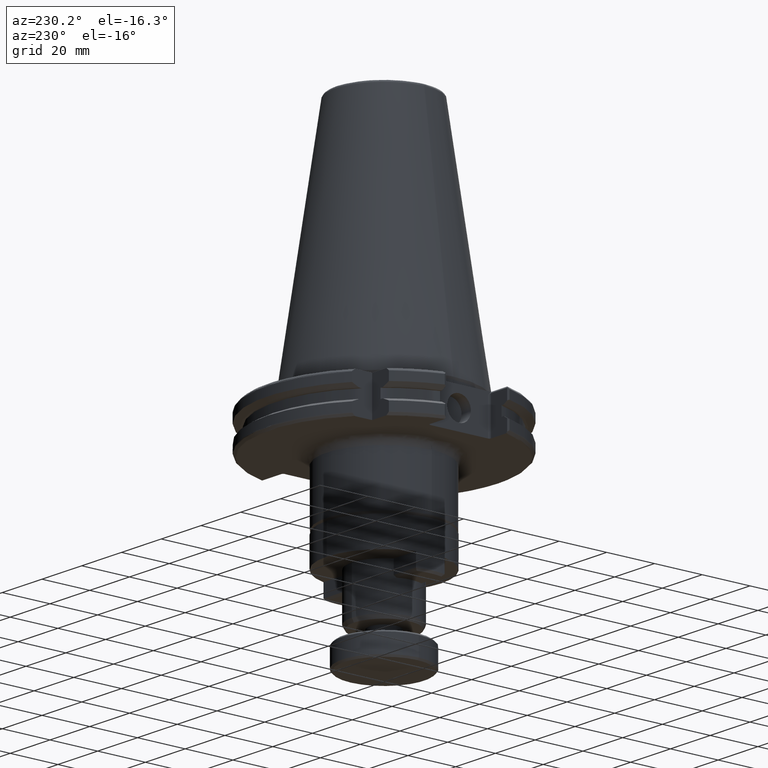
[diagram: clean part render]
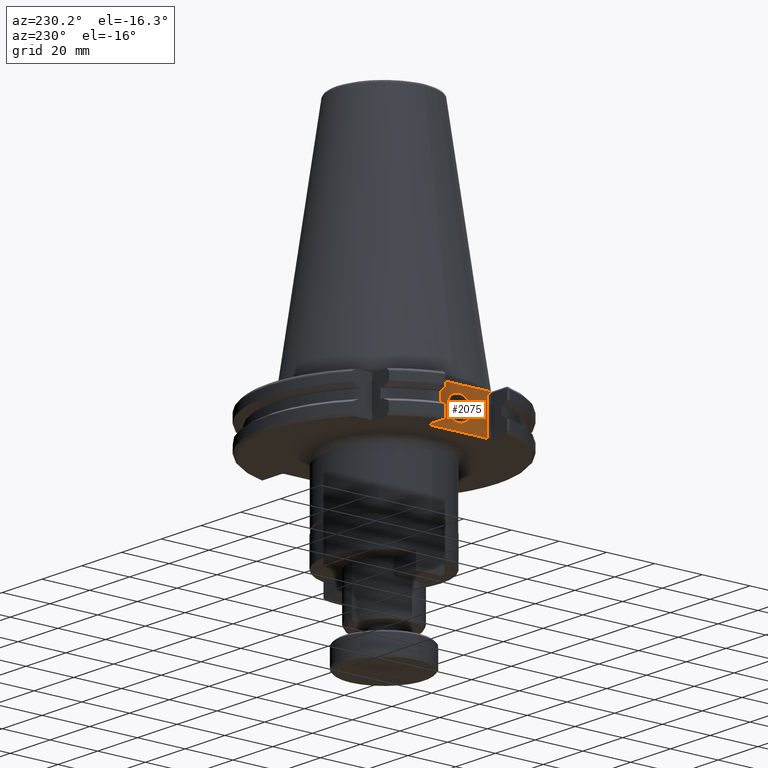
[diagram: same view with one face highlighted and labeled with its STEP entity id]
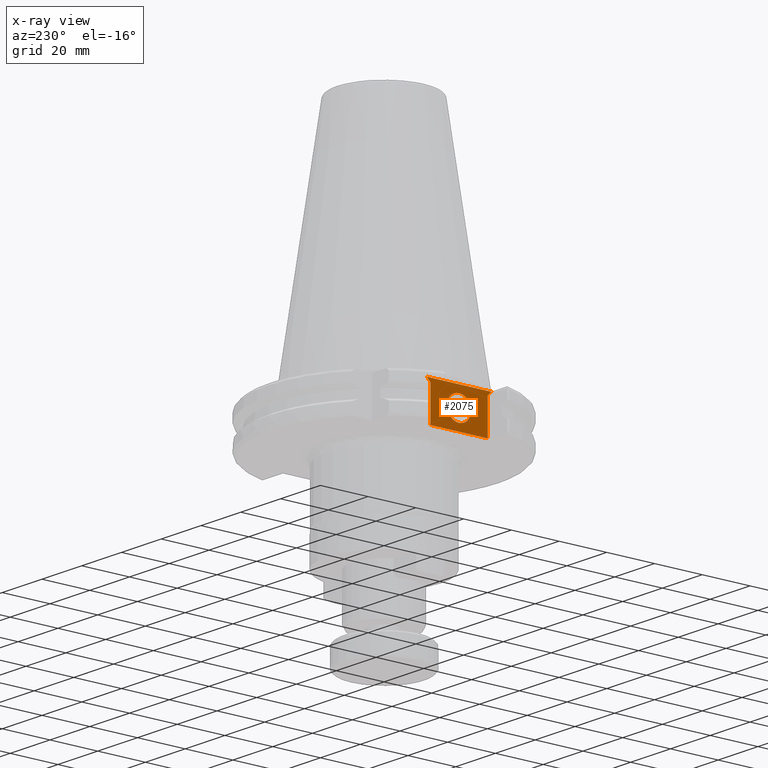
[diagram: x-ray of the same camera — body ghosted, the highlighted face saturated]
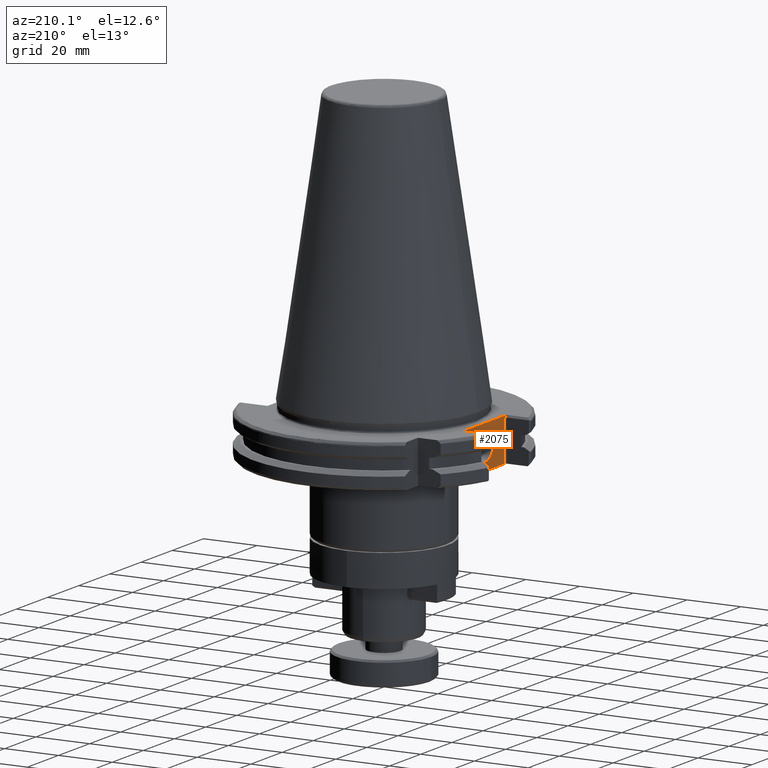
[diagram: same view with one face highlighted and labeled with its STEP entity id]
A machine part, auxiliary view. The second image highlights one B-rep face of the part: STEP entity #2075.
The next image is the same camera in x-ray: the body ghosted, the highlighted face saturated — about 0% of this face is hidden behind the body in this view.
A second angle (auxiliary view) of the same face is appended — the face is thin or edge-on in the first view.
In plain terms, the highlighted planar face has unit normal (-1, 0, 0).
Its self-contained STEP definition (entity closure, byte-faithful):
#4 = CARTESIAN_POINT ( 'NONE',  ( -37.70000000000000300, -13.71260000000000000, -19.10000000000000100 ) ) ;
#9 = ORIENTED_EDGE ( 'NONE', *, *, #2354, .T. ) ;
#83 = VECTOR ( 'NONE', #1990, 1000.000000000000000 ) ;
#100 = ORIENTED_EDGE ( 'NONE', *, *, #1034, .T. ) ;
#120 = PLANE ( 'NONE',  #5437 ) ;
#136 = DIRECTION ( 'NONE',  ( -1.000000000000000000, 0.0000000000000000000, 0.0000000000000000000 ) ) ;
#137 = LINE ( 'NONE', #1383, #83 ) ;
#157 = DIRECTION ( 'NONE',  ( 0.0000000000000000000, 0.0000000000000000000, 1.000000000000000000 ) ) ;
#159 = ORIENTED_EDGE ( 'NONE', *, *, #3471, .T. ) ;
#296 = FACE_BOUND ( 'NONE', #4610, .T. ) ;
#319 = VERTEX_POINT ( 'NONE', #1277 ) ;
#355 = FACE_OUTER_BOUND ( 'NONE', #4769, .T. ) ;
#448 = EDGE_CURVE ( 'NONE', #752, #319, #2301, .T. ) ;
#459 = DIRECTION ( 'NONE',  ( 0.0000000000000000000, -0.7071067809318952700, 0.7071067814411997600 ) ) ;
#549 = CIRCLE ( 'NONE', #3278, 5.000000000000000900 ) ;
#752 = VERTEX_POINT ( 'NONE', #3655 ) ;
#803 = CARTESIAN_POINT ( 'NONE',  ( -37.70000000000000300, 13.54999999327920100, -3.200000000000001500 ) ) ;
#851 = VERTEX_POINT ( 'NONE', #4781 ) ;
#995 = EDGE_CURVE ( 'NONE', #3117, #2011, #1650, .T. ) ;
#1034 = EDGE_CURVE ( 'NONE', #5025, #1221, #1617, .T. ) ;
#1095 = DIRECTION ( 'NONE',  ( 0.0000000000000000000, -0.7071067809318952700, -0.7071067814411997600 ) ) ;
#1221 = VERTEX_POINT ( 'NONE', #2249 ) ;
#1277 = CARTESIAN_POINT ( 'NONE',  ( -37.70000000000000300, 6.123233995736767300E-016, -16.15000000000000200 ) ) ;
#1332 = VECTOR ( 'NONE', #3409, 1000.000000000000000 ) ;
#1383 = CARTESIAN_POINT ( 'NONE',  ( -37.70000000000000300, -12.04999998865959800, -11.15000000000000200 ) ) ;
#1611 = VECTOR ( 'NONE', #459, 1000.000000000000100 ) ;
#1617 = LINE ( 'NONE', #2239, #1611 ) ;
#1627 = VECTOR ( 'NONE', #1095, 1000.000000000000100 ) ;
#1650 = LINE ( 'NONE', #803, #1627 ) ;
#1990 = DIRECTION ( 'NONE',  ( 0.0000000000000000000, 0.0000000000000000000, 1.000000000000000000 ) ) ;
#2011 = VERTEX_POINT ( 'NONE', #4917 ) ;
#2075 = ADVANCED_FACE ( 'NONE', ( #296, #355 ), #120, .T. ) ;
#2239 = CARTESIAN_POINT ( 'NONE',  ( -37.70000000000000300, -12.04999998865959800, -4.700000005700000600 ) ) ;
#2249 = CARTESIAN_POINT ( 'NONE',  ( -37.70000000000000300, -13.55000002042516400, -3.199999999999999700 ) ) ;
#2262 = CARTESIAN_POINT ( 'NONE',  ( -37.70000000000000300, -12.04999999432980000, -4.700000005670202300 ) ) ;
#2271 = CARTESIAN_POINT ( 'NONE',  ( -37.70000000000000300, 0.0000000000000000000, -11.15000000000000000 ) ) ;
#2289 = DIRECTION ( 'NONE',  ( 1.000000000000000000, -0.0000000000000000000, -0.0000000000000000000 ) ) ;
#2290 = CARTESIAN_POINT ( 'NONE',  ( -37.70000000000000300, 12.04999998865959800, -11.15000000000000200 ) ) ;
#2301 = CIRCLE ( 'NONE', #2826, 5.000000000000000900 ) ;
#2305 = DIRECTION ( 'NONE',  ( 0.0000000000000000000, 0.0000000000000000000, 1.000000000000000000 ) ) ;
#2354 = EDGE_CURVE ( 'NONE', #4870, #5025, #137, .T. ) ;
#2826 = AXIS2_PLACEMENT_3D ( 'NONE', #2271, #2289, #2305 ) ;
#2831 = EDGE_CURVE ( 'NONE', #4870, #851, #5408, .T. ) ;
#2979 = EDGE_CURVE ( 'NONE', #319, #752, #549, .T. ) ;
#3018 = EDGE_CURVE ( 'NONE', #2011, #851, #4928, .T. ) ;
#3045 = CARTESIAN_POINT ( 'NONE',  ( -37.70000001306853200, -12.04999999432980000, -19.10000000000000100 ) ) ;
#3117 = VERTEX_POINT ( 'NONE', #5735 ) ;
#3278 = AXIS2_PLACEMENT_3D ( 'NONE', #4019, #5609, #5625 ) ;
#3387 = CARTESIAN_POINT ( 'NONE',  ( -37.70000000000000300, 0.0000000000000000000, -3.200000000000000200 ) ) ;
#3409 = DIRECTION ( 'NONE',  ( 0.0000000000000000000, 1.000000000000000000, 0.0000000000000000000 ) ) ;
#3471 = EDGE_CURVE ( 'NONE', #1221, #3117, #3689, .T. ) ;
#3655 = CARTESIAN_POINT ( 'NONE',  ( -37.70000000000000300, 0.0000000000000000000, -6.149999999999999500 ) ) ;
#3659 = ORIENTED_EDGE ( 'NONE', *, *, #448, .T. ) ;
#3689 = LINE ( 'NONE', #3387, #1332 ) ;
#3768 = VECTOR ( 'NONE', #5288, 1000.000000000000000 ) ;
#4019 = CARTESIAN_POINT ( 'NONE',  ( -37.70000000000000300, 0.0000000000000000000, -11.15000000000000000 ) ) ;
#4179 = VECTOR ( 'NONE', #4759, 1000.000000000000000 ) ;
#4355 = ORIENTED_EDGE ( 'NONE', *, *, #2979, .T. ) ;
#4553 = ORIENTED_EDGE ( 'NONE', *, *, #995, .T. ) ;
#4610 = EDGE_LOOP ( 'NONE', ( #3659, #4355 ) ) ;
#4657 = CARTESIAN_POINT ( 'NONE',  ( -37.70000002613706200, 0.0000000000000000000, -19.10000000000000100 ) ) ;
#4706 = ORIENTED_EDGE ( 'NONE', *, *, #3018, .T. ) ;
#4759 = DIRECTION ( 'NONE',  ( 0.0000000000000000000, 1.000000000000000000, 0.0000000000000000000 ) ) ;
#4769 = EDGE_LOOP ( 'NONE', ( #4553, #4706, #4974, #9, #100, #159 ) ) ;
#4781 = CARTESIAN_POINT ( 'NONE',  ( -37.70000001306853200, 12.04999999432980000, -19.10000000000000100 ) ) ;
#4870 = VERTEX_POINT ( 'NONE', #3045 ) ;
#4917 = CARTESIAN_POINT ( 'NONE',  ( -37.70000000000000300, 12.04999999432980000, -4.700000005670199600 ) ) ;
#4928 = LINE ( 'NONE', #2290, #3768 ) ;
#4974 = ORIENTED_EDGE ( 'NONE', *, *, #2831, .F. ) ;
#5025 = VERTEX_POINT ( 'NONE', #2262 ) ;
#5288 = DIRECTION ( 'NONE',  ( -0.0000000000000000000, -0.0000000000000000000, -1.000000000000000000 ) ) ;
#5408 = LINE ( 'NONE', #4657, #4179 ) ;
#5437 = AXIS2_PLACEMENT_3D ( 'NONE', #4, #136, #157 ) ;
#5609 = DIRECTION ( 'NONE',  ( 1.000000000000000000, -0.0000000000000000000, -0.0000000000000000000 ) ) ;
#5625 = DIRECTION ( 'NONE',  ( 0.0000000000000000000, 0.0000000000000000000, 1.000000000000000000 ) ) ;
#5735 = CARTESIAN_POINT ( 'NONE',  ( -37.70000000000000300, 13.54999999663960100, -3.199999999999999700 ) ) ;